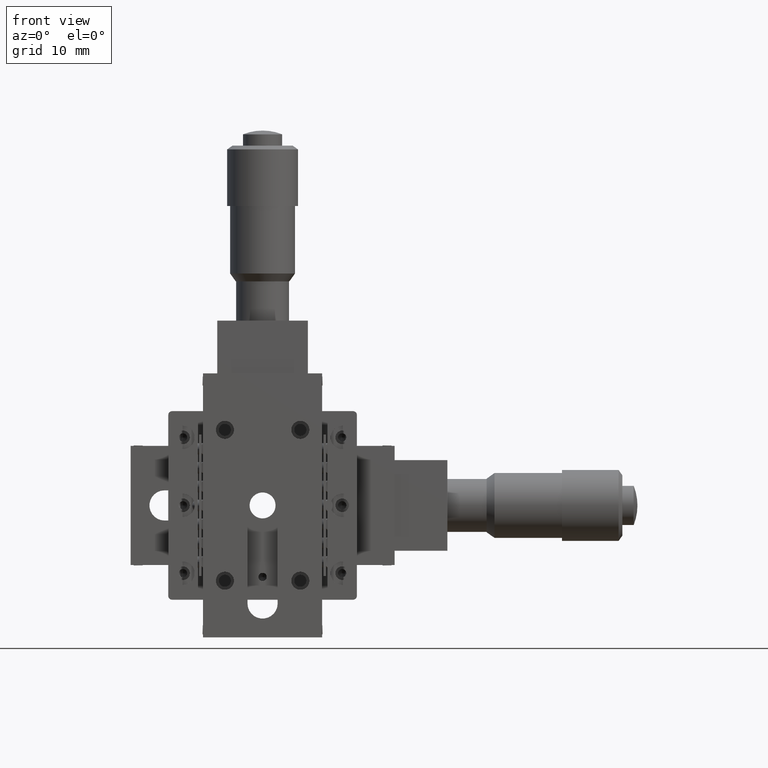
[diagram: clean part render]
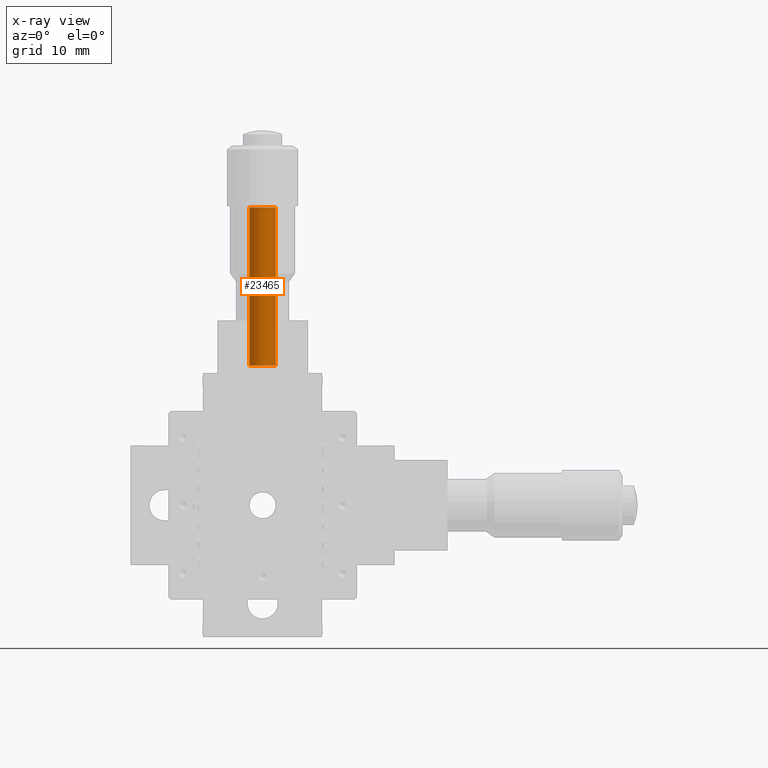
[diagram: x-ray — body ghosted, one internal face saturated and labeled with its STEP entity id]
A machine part, front view, then the same camera in x-ray: the body is ghosted and one INTERNAL B-rep face — a face not visible from any outside direction — is saturated and labeled: STEP entity #23465.
In plain terms, the highlighted cylindrical surface (edge-blend (fillet) strip) has radius 1.75 mm, axis along (-0, -0, -1).
Its self-contained STEP definition (entity closure, byte-faithful):
#2732 = CARTESIAN_POINT ( 'NONE',  ( 1.749251930026281900, 6.148836680137379500, 39.50000000000000700 ) ) ;
#3256 = DIRECTION ( 'NONE',  ( -0.9995725314435850400, 0.02923618277858829100, 0.0000000000000000000 ) ) ;
#3480 = CARTESIAN_POINT ( 'NONE',  ( -1.749251930026274500, 6.251163319862435200, 18.50000000000000400 ) ) ;
#9221 = VECTOR ( 'NONE', #25078, 1000.000000000000000 ) ;
#12097 = VERTEX_POINT ( 'NONE', #30680 ) ;
#12989 = ORIENTED_EDGE ( 'NONE', *, *, #42758, .F. ) ;
#14190 = DIRECTION ( 'NONE',  ( -1.110223024626042000E-016, -1.762506864451433600E-016, -1.000000000000000000 ) ) ;
#15343 = CIRCLE ( 'NONE', #59551, 1.750000000000002900 ) ;
#17748 = CIRCLE ( 'NONE', #39305, 1.750000000000002900 ) ;
#19905 = EDGE_LOOP ( 'NONE', ( #62336, #38715, #24432, #12989 ) ) ;
#20117 = CARTESIAN_POINT ( 'NONE',  ( 4.986447686914091300E-015, 6.199999999999908700, 39.50000000000000700 ) ) ;
#20358 = CARTESIAN_POINT ( 'NONE',  ( -1.749251930026271900, 6.251163319862437900, 39.50000000000000700 ) ) ;
#23236 = FACE_OUTER_BOUND ( 'NONE', #19905, .T. ) ;
#23465 = ADVANCED_FACE ( 'NONE', ( #23236 ), #47010, .F. ) ;
#24091 = DIRECTION ( 'NONE',  ( -1.110223024626042500E-016, -1.762506864451433900E-016, -1.000000000000000000 ) ) ;
#24432 = ORIENTED_EDGE ( 'NONE', *, *, #55516, .T. ) ;
#24966 = VERTEX_POINT ( 'NONE', #30046 ) ;
#25078 = DIRECTION ( 'NONE',  ( -1.110223024626042500E-016, -1.762506864451433900E-016, -1.000000000000000000 ) ) ;
#30046 = CARTESIAN_POINT ( 'NONE',  ( 1.749251930026276300, 6.148836680137377700, 18.50000000000000400 ) ) ;
#30680 = CARTESIAN_POINT ( 'NONE',  ( 1.749251930026279000, 6.148836680137377700, 39.50000000000000700 ) ) ;
#36377 = VERTEX_POINT ( 'NONE', #20358 ) ;
#37235 = AXIS2_PLACEMENT_3D ( 'NONE', #20117, #57418, #68389 ) ;
#38715 = ORIENTED_EDGE ( 'NONE', *, *, #58639, .T. ) ;
#39305 = AXIS2_PLACEMENT_3D ( 'NONE', #62930, #14190, #57901 ) ;
#42758 = EDGE_CURVE ( 'NONE', #36377, #55662, #66842, .T. ) ;
#47010 = CYLINDRICAL_SURFACE ( 'NONE', #37235, 1.750000000000002900 ) ;
#48360 = LINE ( 'NONE', #2732, #9221 ) ;
#51417 = CARTESIAN_POINT ( 'NONE',  ( -1.749251930026271900, 6.251163319862437900, 39.50000000000000700 ) ) ;
#51466 = CARTESIAN_POINT ( 'NONE',  ( 2.276824562219559300E-015, 6.199999999999905100, 18.50000000000000400 ) ) ;
#51945 = DIRECTION ( 'NONE',  ( -1.110223024626042000E-016, -1.762506864451433600E-016, -1.000000000000000000 ) ) ;
#52357 = VECTOR ( 'NONE', #24091, 1000.000000000000000 ) ;
#55516 = EDGE_CURVE ( 'NONE', #24966, #55662, #15343, .T. ) ;
#55662 = VERTEX_POINT ( 'NONE', #3480 ) ;
#57418 = DIRECTION ( 'NONE',  ( -1.110223024626042500E-016, -1.762506864451433900E-016, -1.000000000000000000 ) ) ;
#57901 = DIRECTION ( 'NONE',  ( -0.9995725314435851500, 0.02923618277858829100, 0.0000000000000000000 ) ) ;
#58639 = EDGE_CURVE ( 'NONE', #12097, #24966, #48360, .T. ) ;
#59551 = AXIS2_PLACEMENT_3D ( 'NONE', #51466, #51945, #3256 ) ;
#62336 = ORIENTED_EDGE ( 'NONE', *, *, #64574, .F. ) ;
#62930 = CARTESIAN_POINT ( 'NONE',  ( 4.986447686914091300E-015, 6.199999999999908700, 39.50000000000000700 ) ) ;
#64574 = EDGE_CURVE ( 'NONE', #12097, #36377, #17748, .T. ) ;
#66842 = LINE ( 'NONE', #51417, #52357 ) ;
#68389 = DIRECTION ( 'NONE',  ( -0.9995725314435851500, 0.02923618277858829100, 0.0000000000000000000 ) ) ;